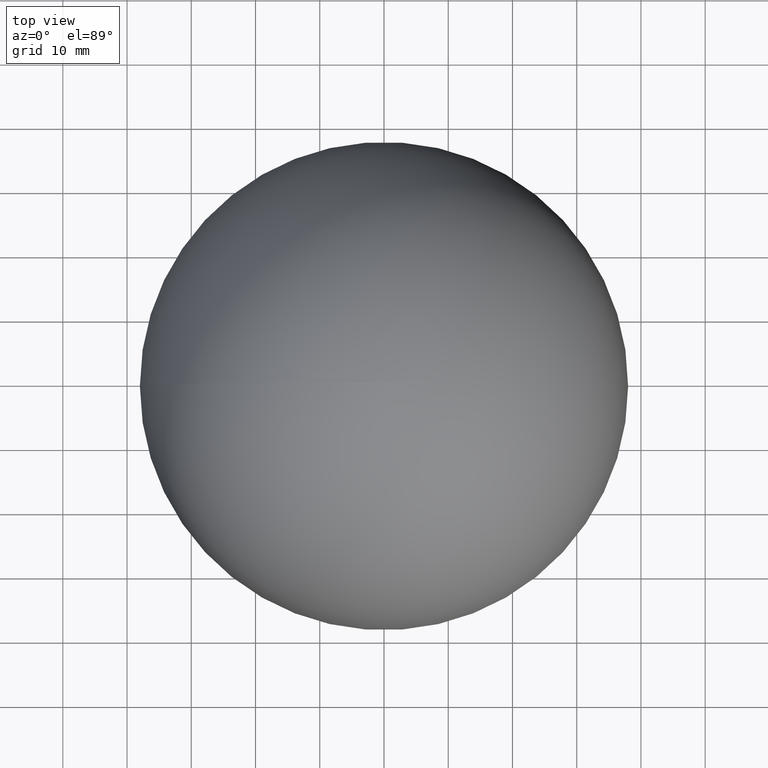
[diagram: clean part render]
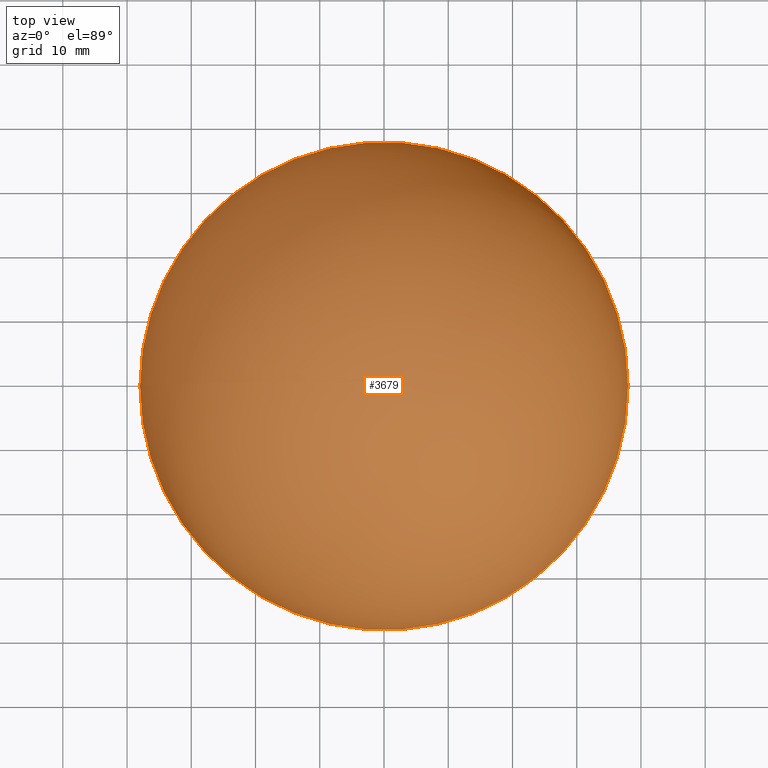
[diagram: same view with one face highlighted and labeled with its STEP entity id]
A machine part, top view. The second image highlights one B-rep face of the part: STEP entity #3679.
In plain terms, the highlighted spherical surface has radius 38 mm.
Its self-contained STEP definition (entity closure, byte-faithful):
#911 = CARTESIAN_POINT ( 'NONE',  ( 0.000000000000000000, 0.000000000000000000, 0.000000000000000000 ) ) ;
#934 = DIRECTION ( 'NONE',  ( 6.982962677686266711E-15, 0.000000000000000000, -1.000000000000000000 ) ) ;
#1242 = DIRECTION ( 'NONE',  ( -1.000000000000000000, 0.000000000000000000, -6.982962677686265133E-15 ) ) ;
#1618 = AXIS2_PLACEMENT_3D ( 'NONE', #9123, #934, #8982 ) ;
#1888 = SPHERICAL_SURFACE ( 'NONE', #2710, 38.00000000000000711 ) ;
#2416 = DIRECTION ( 'NONE',  ( -6.982962677686265922E-15, 0.000000000000000000, 1.000000000000000000 ) ) ;
#2674 = CIRCLE ( 'NONE', #5174, 38.00000000000000711 ) ;
#2710 = AXIS2_PLACEMENT_3D ( 'NONE', #911, #2416, #9099 ) ;
#3679 = ADVANCED_FACE ( 'NONE', ( #7863 ), #1888, .T. ) ;
#4148 = CARTESIAN_POINT ( 'NONE',  ( 38.00000000000000711, 4.653657836759942730E-15, 2.653525817520781350E-13 ) ) ;
#4547 = ORIENTED_EDGE ( 'NONE', *, *, #7076, .F. ) ;
#4828 = EDGE_CURVE ( 'NONE', #6116, #6579, #7140, .T. ) ;
#5174 = AXIS2_PLACEMENT_3D ( 'NONE', #5818, #9518, #1242 ) ;
#5818 = CARTESIAN_POINT ( 'NONE',  ( 0.000000000000000000, 0.000000000000000000, 0.000000000000000000 ) ) ;
#6116 = VERTEX_POINT ( 'NONE', #4148 ) ;
#6476 = EDGE_LOOP ( 'NONE', ( #4547, #7472 ) ) ;
#6579 = VERTEX_POINT ( 'NONE', #7715 ) ;
#7076 = EDGE_CURVE ( 'NONE', #6579, #6116, #2674, .T. ) ;
#7140 = CIRCLE ( 'NONE', #1618, 38.00000000000000711 ) ;
#7472 = ORIENTED_EDGE ( 'NONE', *, *, #4828, .F. ) ;
#7715 = CARTESIAN_POINT ( 'NONE',  ( -38.00000000000000711, 0.000000000000000000, -2.653525817520781350E-13 ) ) ;
#7863 = FACE_OUTER_BOUND ( 'NONE', #6476, .T. ) ;
#8982 = DIRECTION ( 'NONE',  ( -1.000000000000000000, 0.000000000000000000, -6.982962677686265133E-15 ) ) ;
#9099 = DIRECTION ( 'NONE',  ( -1.000000000000000000, 0.000000000000000000, -6.982962677686265922E-15 ) ) ;
#9123 = CARTESIAN_POINT ( 'NONE',  ( 0.000000000000000000, 0.000000000000000000, 0.000000000000000000 ) ) ;
#9518 = DIRECTION ( 'NONE',  ( 6.982962677686266711E-15, 0.000000000000000000, -1.000000000000000000 ) ) ;